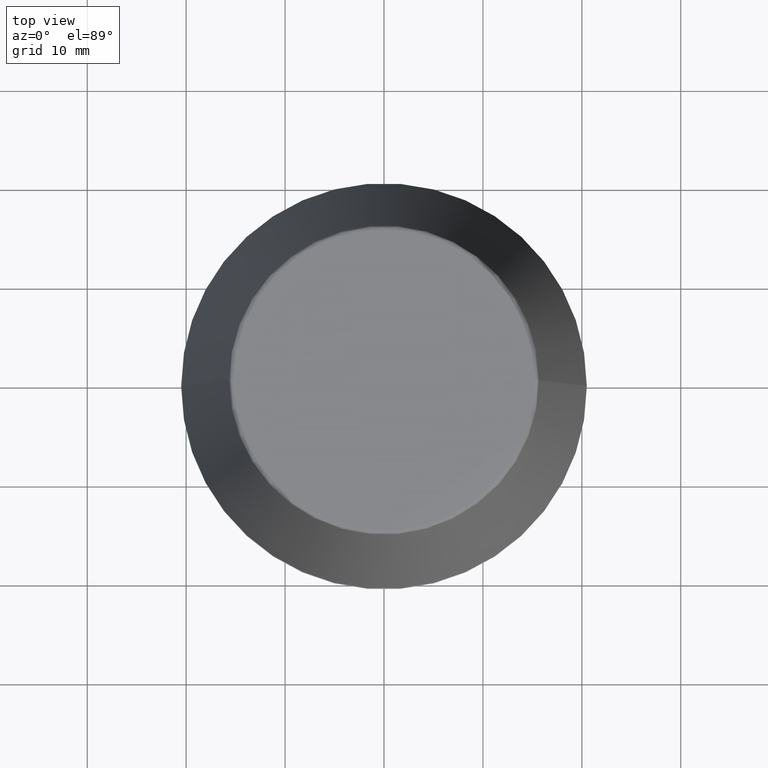
[diagram: clean part render]
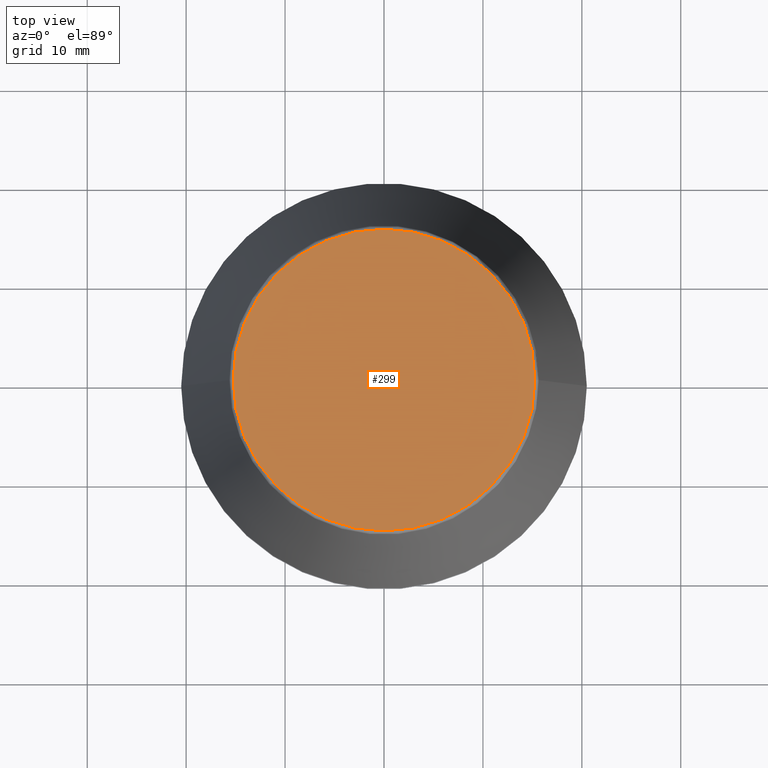
[diagram: same view with one face highlighted and labeled with its STEP entity id]
A machine part, top view. The second image highlights one B-rep face of the part: STEP entity #299.
In plain terms, the highlighted planar face has unit normal (0, 0, -1).
Its self-contained STEP definition (entity closure, byte-faithful):
#4 = CIRCLE ( 'NONE', #77, 15.24773554530077600 ) ;
#6 = DIRECTION ( 'NONE',  ( -1.000000000000000000, 0.0000000000000000000, -0.0000000000000000000 ) ) ;
#39 = ORIENTED_EDGE ( 'NONE', *, *, #276, .T. ) ;
#73 = DIRECTION ( 'NONE',  ( -0.0000000000000000000, -0.0000000000000000000, 1.000000000000000000 ) ) ;
#77 = AXIS2_PLACEMENT_3D ( 'NONE', #313, #353, #324 ) ;
#103 = VERTEX_POINT ( 'NONE', #377 ) ;
#129 = PLANE ( 'NONE',  #162 ) ;
#133 = DIRECTION ( 'NONE',  ( 0.0000000000000000000, 0.0000000000000000000, -1.000000000000000000 ) ) ;
#154 = CARTESIAN_POINT ( 'NONE',  ( 15.24773554530077600, 0.0000000000000000000, 46.00000000000000000 ) ) ;
#157 = CARTESIAN_POINT ( 'NONE',  ( 0.0000000000000000000, 15.24773554530077600, 46.00000000000000000 ) ) ;
#162 = AXIS2_PLACEMENT_3D ( 'NONE', #157, #133, #6 ) ;
#215 = EDGE_CURVE ( 'NONE', #275, #103, #4, .T. ) ;
#224 = ORIENTED_EDGE ( 'NONE', *, *, #215, .T. ) ;
#228 = AXIS2_PLACEMENT_3D ( 'NONE', #247, #73, #283 ) ;
#247 = CARTESIAN_POINT ( 'NONE',  ( 0.0000000000000000000, 0.0000000000000000000, 46.00000000000000000 ) ) ;
#275 = VERTEX_POINT ( 'NONE', #154 ) ;
#276 = EDGE_CURVE ( 'NONE', #103, #275, #334, .T. ) ;
#283 = DIRECTION ( 'NONE',  ( 1.000000000000000000, 0.0000000000000000000, 0.0000000000000000000 ) ) ;
#287 = EDGE_LOOP ( 'NONE', ( #224, #39 ) ) ;
#299 = ADVANCED_FACE ( 'NONE', ( #320 ), #129, .F. ) ;
#313 = CARTESIAN_POINT ( 'NONE',  ( 0.0000000000000000000, 0.0000000000000000000, 46.00000000000000000 ) ) ;
#320 = FACE_OUTER_BOUND ( 'NONE', #287, .T. ) ;
#324 = DIRECTION ( 'NONE',  ( 1.000000000000000000, 0.0000000000000000000, 0.0000000000000000000 ) ) ;
#334 = CIRCLE ( 'NONE', #228, 15.24773554530077600 ) ;
#353 = DIRECTION ( 'NONE',  ( -0.0000000000000000000, -0.0000000000000000000, 1.000000000000000000 ) ) ;
#377 = CARTESIAN_POINT ( 'NONE',  ( -15.24773554530077600, 1.891563625393435400E-015, 46.00000000000000000 ) ) ;